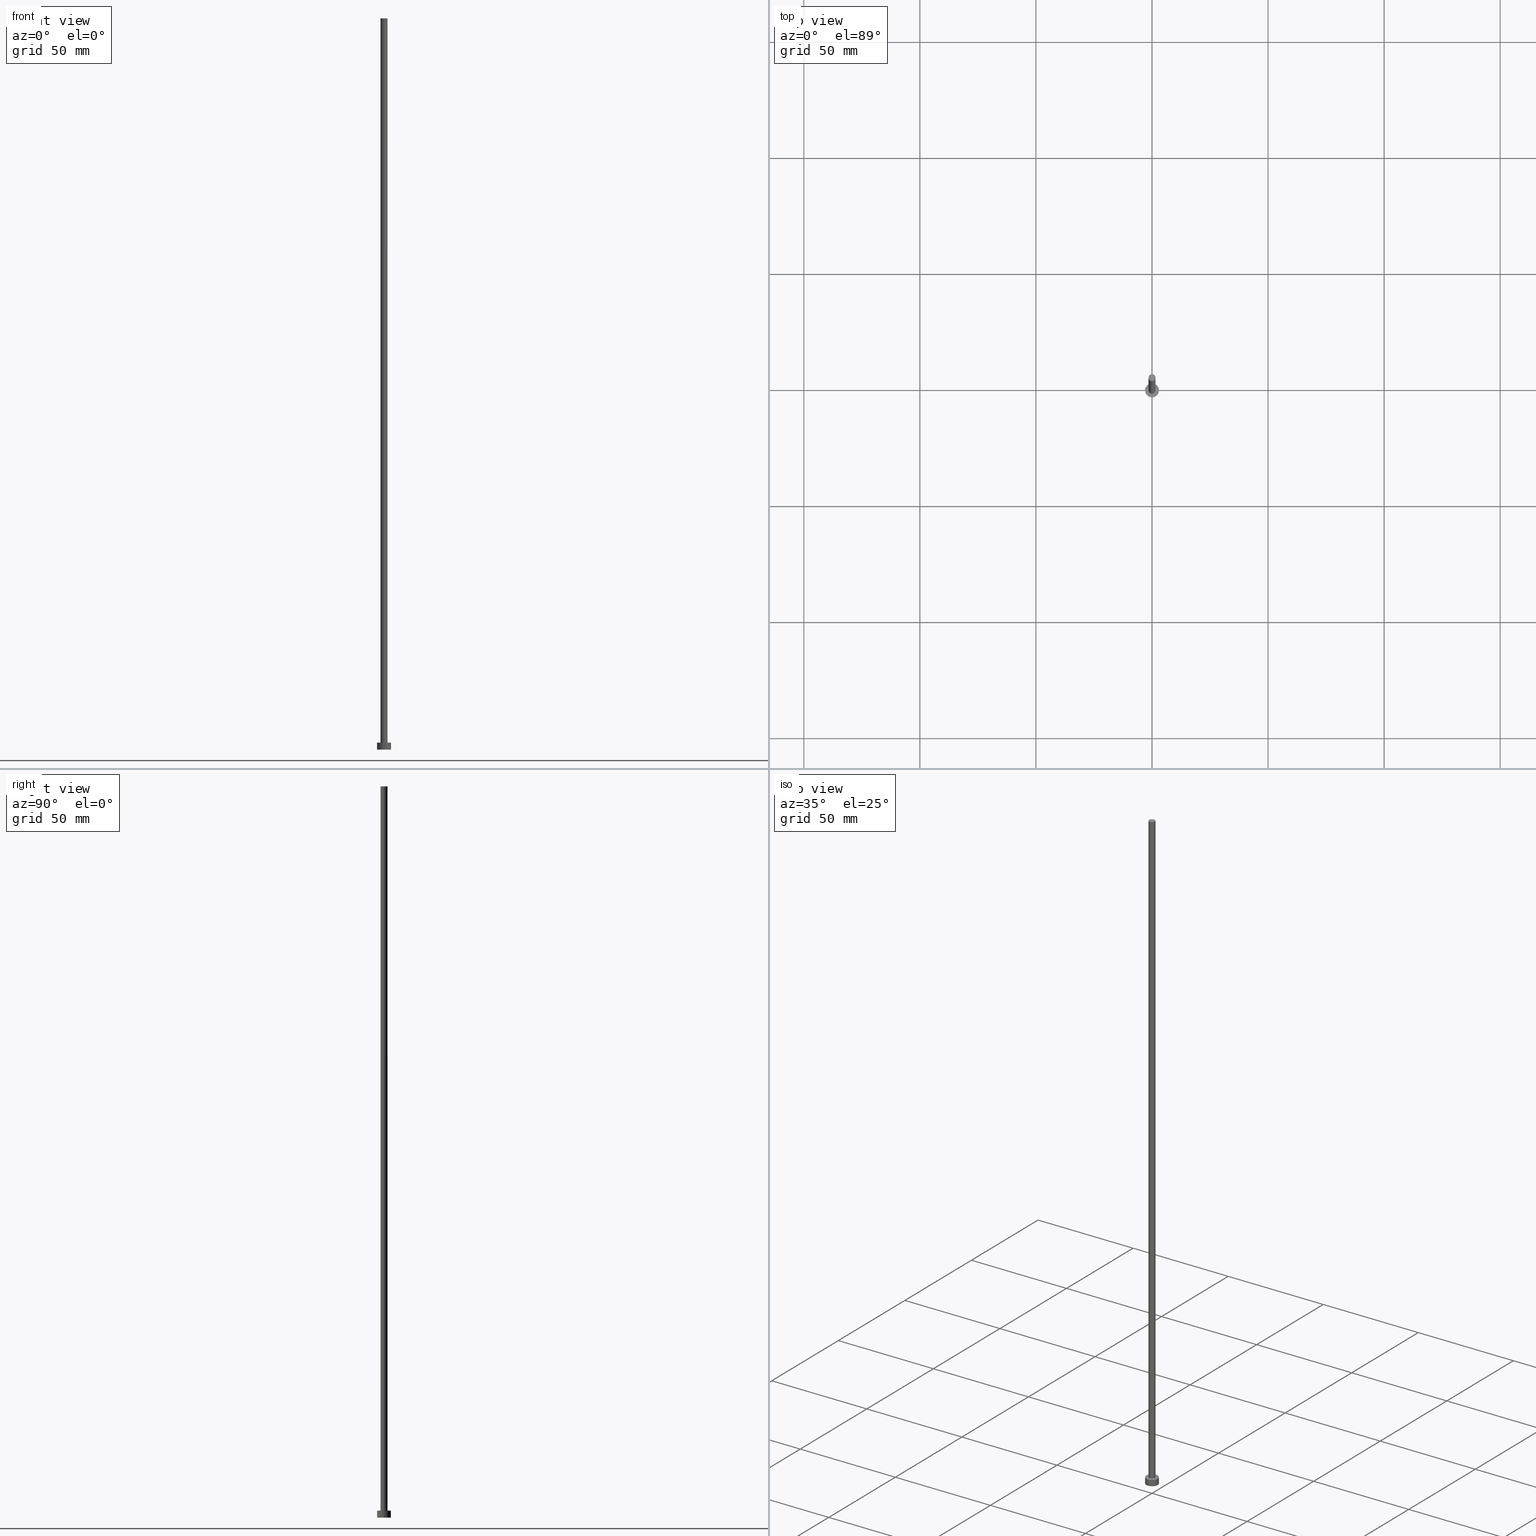
[diagram: canonical four-view strip — front | top / right | iso, engineering-drawing reading convention]
A machine part, canonical four-view strip (front | top / right | iso — engineering-drawing reading convention). The complete STEP part file that produces these views, byte-faithful:
ISO-10303-21;
HEADER;
FILE_DESCRIPTION (( 'STEP AP203' ),
    '1' );
FILE_NAME ('45d9.STEP',
    '2023-02-13T16:54:37',
    ( '' ),
    ( '' ),
    'SwSTEP 2.0',
    'SolidWorks 2019',
    '' );
FILE_SCHEMA (( 'CONFIG_CONTROL_DESIGN' ));
ENDSEC;

DATA;
#1 = PERSON_AND_ORGANIZATION ( #113, #80 ) ;
#2 = COORDINATED_UNIVERSAL_TIME_OFFSET ( 1, 0, .AHEAD. ) ;
#3 = DIRECTION ( 'NONE',  ( 1.000000000000000000, 0.000000000000000000, 0.000000000000000000 ) ) ;
#4 = ORIENTED_EDGE ( 'NONE', *, *, #111, .T. ) ;
#5 = APPROVAL ( #23, 'NEUR�EN�' ) ;
#6 = LOCAL_TIME ( 17, 54, 37.00000000000000000, #156 ) ;
#7 = AXIS2_PLACEMENT_3D ( 'NONE', #161, #183, #185 ) ;
#8 = ORIENTED_EDGE ( 'NONE', *, *, #43, .F. ) ;
#9 = PERSON_AND_ORGANIZATION ( #113, #80 ) ;
#10 = CARTESIAN_POINT ( 'NONE',  ( 1.500000000000000222, 1.836970198721030181E-16, 315.0000000000000000 ) ) ;
#11 =( NAMED_UNIT ( * ) PLANE_ANGLE_UNIT ( ) SI_UNIT ( $, .RADIAN. ) );
#12 = CYLINDRICAL_SURFACE ( 'NONE', #70, 3.000000000000000444 ) ;
#13 = VECTOR ( 'NONE', #93, 1000.000000000000000 ) ;
#14 = DIRECTION ( 'NONE',  ( -0.000000000000000000, -0.000000000000000000, -1.000000000000000000 ) ) ;
#15 = CARTESIAN_POINT ( 'NONE',  ( 3.000000000000000444, 3.673940397442060361E-16, 0.000000000000000000 ) ) ;
#16 = DIRECTION ( 'NONE',  ( 0.000000000000000000, 0.000000000000000000, 1.000000000000000000 ) ) ;
#17 = CARTESIAN_POINT ( 'NONE',  ( 0.000000000000000000, 0.000000000000000000, 0.000000000000000000 ) ) ;
#18 = DIRECTION ( 'NONE',  ( -1.000000000000000000, 0.000000000000000000, 0.000000000000000000 ) ) ;
#19 = CARTESIAN_POINT ( 'NONE',  ( 0.000000000000000000, 0.000000000000000000, 0.000000000000000000 ) ) ;
#20 = EDGE_CURVE ( 'NONE', #65, #136, #162, .T. ) ;
#21 = FACE_OUTER_BOUND ( 'NONE', #220, .T. ) ;
#22 = PERSON_AND_ORGANIZATION ( #113, #80 ) ;
#23 = APPROVAL_STATUS ( 'not_yet_approved' ) ;
#24 = ORIENTED_EDGE ( 'NONE', *, *, #173, .F. ) ;
#25 = APPROVAL_ROLE ( '' ) ;
#26 = APPROVAL_ROLE ( '' ) ;
#27 = SHAPE_DEFINITION_REPRESENTATION ( #100, #170 ) ;
#28 = ADVANCED_FACE ( 'NONE', ( #229 ), #230, .T. ) ;
#29 = CIRCLE ( 'NONE', #167, 1.500000000000000222 ) ;
#30 = DIRECTION ( 'NONE',  ( 0.000000000000000000, 0.000000000000000000, 1.000000000000000000 ) ) ;
#31 = EDGE_LOOP ( 'NONE', ( #117, #137, #160, #74 ) ) ;
#32 = FACE_OUTER_BOUND ( 'NONE', #175, .T. ) ;
#33 = EDGE_CURVE ( 'NONE', #136, #157, #89, .T. ) ;
#34 = AXIS2_PLACEMENT_3D ( 'NONE', #19, #174, #254 ) ;
#35 = DIRECTION ( 'NONE',  ( -0.000000000000000000, -0.000000000000000000, -1.000000000000000000 ) ) ;
#36 = APPLICATION_PROTOCOL_DEFINITION ( 'international standard', 'config_control_design', 1994, #154 ) ;
#37 = DIRECTION ( 'NONE',  ( -0.000000000000000000, -0.000000000000000000, -1.000000000000000000 ) ) ;
#38 = EDGE_CURVE ( 'NONE', #224, #135, #190, .T. ) ;
#39 = CARTESIAN_POINT ( 'NONE',  ( -1.500000000000000222, 0.000000000000000000, 315.0000000000000000 ) ) ;
#40 = DATE_TIME_ROLE ( 'creation_date' ) ;
#41 = PRODUCT_DEFINITION_FORMATION_WITH_SPECIFIED_SOURCE ( 'LIBOVOLN�', '', #101, .NOT_KNOWN. ) ;
#42 = DESIGN_CONTEXT ( 'detailed design', #195, 'design' ) ;
#43 = EDGE_CURVE ( 'NONE', #136, #65, #206, .T. ) ;
#44 = DATE_TIME_ROLE ( 'classification_date' ) ;
#45 = CALENDAR_DATE ( 2023, 13, 2 ) ;
#46 = CC_DESIGN_APPROVAL ( #5, ( #69 ) ) ;
#47 = DATE_AND_TIME ( #99, #251 ) ;
#48 = EDGE_CURVE ( 'NONE', #215, #178, #120, .T. ) ;
#49 = MECHANICAL_CONTEXT ( 'NONE', #154, 'mechanical' ) ;
#50 = CARTESIAN_POINT ( 'NONE',  ( -3.000000000000000444, 0.000000000000000000, 3.000000000000000000 ) ) ;
#51 = EDGE_LOOP ( 'NONE', ( #138, #158 ) ) ;
#52 = ORIENTED_EDGE ( 'NONE', *, *, #38, .F. ) ;
#53 = CC_DESIGN_PERSON_AND_ORGANIZATION_ASSIGNMENT ( #9, #87, ( #69 ) ) ;
#54 = DIRECTION ( 'NONE',  ( 1.000000000000000000, 0.000000000000000000, 0.000000000000000000 ) ) ;
#55 = DIRECTION ( 'NONE',  ( 1.000000000000000000, 0.000000000000000000, -0.000000000000000000 ) ) ;
#56 = AXIS2_PLACEMENT_3D ( 'NONE', #203, #30, #159 ) ;
#57 = EDGE_CURVE ( 'NONE', #178, #224, #76, .T. ) ;
#58 = DIRECTION ( 'NONE',  ( -1.000000000000000000, 0.000000000000000000, 0.000000000000000000 ) ) ;
#59 = EDGE_LOOP ( 'NONE', ( #68, #240 ) ) ;
#60 = EDGE_CURVE ( 'NONE', #215, #135, #140, .T. ) ;
#61 = CARTESIAN_POINT ( 'NONE',  ( 0.000000000000000000, 0.000000000000000000, 3.000000000000000000 ) ) ;
#62 = PERSON_AND_ORGANIZATION_ROLE ( 'creator' ) ;
#63 = PERSON_AND_ORGANIZATION ( #113, #80 ) ;
#64 = APPLICATION_PROTOCOL_DEFINITION ( 'international standard', 'config_control_design', 1994, #195 ) ;
#65 = VERTEX_POINT ( 'NONE', #71 ) ;
#66 = ADVANCED_FACE ( 'NONE', ( #227 ), #225, .T. ) ;
#67 = ORIENTED_EDGE ( 'NONE', *, *, #96, .F. ) ;
#68 = ORIENTED_EDGE ( 'NONE', *, *, #43, .T. ) ;
#69 = PRODUCT_DEFINITION ( 'NEZN�M�', '', #41, #42 ) ;
#70 = AXIS2_PLACEMENT_3D ( 'NONE', #243, #91, #207 ) ;
#71 = CARTESIAN_POINT ( 'NONE',  ( 3.000000000000000444, 3.673940397442060361E-16, 3.000000000000000000 ) ) ;
#72 = FACE_BOUND ( 'NONE', #86, .T. ) ;
#73 = CARTESIAN_POINT ( 'NONE',  ( -3.000000000000000444, 0.000000000000000000, 3.000000000000000000 ) ) ;
#74 = ORIENTED_EDGE ( 'NONE', *, *, #60, .F. ) ;
#75 = APPROVAL_PERSON_ORGANIZATION ( #63, #255, #25 ) ;
#76 = LINE ( 'NONE', #126, #114 ) ;
#77 = AXIS2_PLACEMENT_3D ( 'NONE', #247, #232, #95 ) ;
#78 = CALENDAR_DATE ( 2023, 13, 2 ) ;
#79 = AXIS2_PLACEMENT_3D ( 'NONE', #146, #186, #54 ) ;
#80 = ORGANIZATION ( 'NEUR�EN�', 'NEUR�EN�', '' ) ;
#81 = CARTESIAN_POINT ( 'NONE',  ( 0.000000000000000000, 0.000000000000000000, 3.000000000000000000 ) ) ;
#82 = EDGE_CURVE ( 'NONE', #178, #215, #29, .T. ) ;
#83 = APPROVAL_DATE_TIME ( #179, #5 ) ;
#84 = ORIENTED_EDGE ( 'NONE', *, *, #57, .F. ) ;
#85 = DIRECTION ( 'NONE',  ( 1.000000000000000000, 0.000000000000000000, 0.000000000000000000 ) ) ;
#86 = EDGE_LOOP ( 'NONE', ( #67, #52 ) ) ;
#87 = PERSON_AND_ORGANIZATION_ROLE ( 'creator' ) ;
#88 = APPROVAL_PERSON_ORGANIZATION ( #199, #5, #103 ) ;
#89 = LINE ( 'NONE', #73, #13 ) ;
#90 = CARTESIAN_POINT ( 'NONE',  ( 0.000000000000000000, 0.000000000000000000, 3.000000000000000000 ) ) ;
#91 = DIRECTION ( 'NONE',  ( -0.000000000000000000, -0.000000000000000000, -1.000000000000000000 ) ) ;
#92 =( NAMED_UNIT ( * ) SI_UNIT ( $, .STERADIAN. ) SOLID_ANGLE_UNIT ( ) );
#93 = DIRECTION ( 'NONE',  ( -0.000000000000000000, -0.000000000000000000, -1.000000000000000000 ) ) ;
#94 = AXIS2_PLACEMENT_3D ( 'NONE', #17, #246, #85 ) ;
#95 = DIRECTION ( 'NONE',  ( -1.000000000000000000, 0.000000000000000000, 0.000000000000000000 ) ) ;
#96 = EDGE_CURVE ( 'NONE', #135, #224, #235, .T. ) ;
#97 =( GEOMETRIC_REPRESENTATION_CONTEXT ( 3 ) GLOBAL_UNCERTAINTY_ASSIGNED_CONTEXT ( ( #214 ) ) GLOBAL_UNIT_ASSIGNED_CONTEXT ( ( #149, #11, #92 ) ) REPRESENTATION_CONTEXT ( 'NONE', 'WORKASPACE' ) );
#98 = ADVANCED_FACE ( 'NONE', ( #32 ), #12, .T. ) ;
#99 = CALENDAR_DATE ( 2023, 13, 2 ) ;
#100 = PRODUCT_DEFINITION_SHAPE ( 'NONE', 'NONE',  #69 ) ;
#101 = PRODUCT ( '45d9', '45d9', '', ( #49 ) ) ;
#102 = CC_DESIGN_PERSON_AND_ORGANIZATION_ASSIGNMENT ( #213, #216, ( #223 ) ) ;
#103 = APPROVAL_ROLE ( '' ) ;
#104 = ORIENTED_EDGE ( 'NONE', *, *, #33, .T. ) ;
#105 = CALENDAR_DATE ( 2023, 13, 2 ) ;
#106 = DIRECTION ( 'NONE',  ( 0.000000000000000000, 0.000000000000000000, 1.000000000000000000 ) ) ;
#107 = AXIS2_PLACEMENT_3D ( 'NONE', #90, #123, #108 ) ;
#108 = DIRECTION ( 'NONE',  ( 1.000000000000000000, 0.000000000000000000, 0.000000000000000000 ) ) ;
#109 = LINE ( 'NONE', #166, #144 ) ;
#110 = DIRECTION ( 'NONE',  ( 1.000000000000000000, 0.000000000000000000, 0.000000000000000000 ) ) ;
#111 = EDGE_CURVE ( 'NONE', #65, #122, #109, .T. ) ;
#112 = DIRECTION ( 'NONE',  ( 1.000000000000000000, 0.000000000000000000, 0.000000000000000000 ) ) ;
#113 = PERSON ( 'NEUR�EN�', 'NEUR�EN�', 'NEUR�EN�', ('NEUR�EN�'), ('NEUR�EN�'), ('NEUR�EN�') ) ;
#114 = VECTOR ( 'NONE', #242, 1000.000000000000000 ) ;
#115 = FACE_OUTER_BOUND ( 'NONE', #119, .T. ) ;
#116 = PERSON_AND_ORGANIZATION ( #113, #80 ) ;
#117 = ORIENTED_EDGE ( 'NONE', *, *, #82, .F. ) ;
#118 = ORIENTED_EDGE ( 'NONE', *, *, #173, .T. ) ;
#119 = EDGE_LOOP ( 'NONE', ( #155, #8, #104, #202 ) ) ;
#120 = CIRCLE ( 'NONE', #7, 1.500000000000000222 ) ;
#121 = ORIENTED_EDGE ( 'NONE', *, *, #48, .F. ) ;
#122 = VERTEX_POINT ( 'NONE', #15 ) ;
#123 = DIRECTION ( 'NONE',  ( 0.000000000000000000, 0.000000000000000000, 1.000000000000000000 ) ) ;
#124 = CARTESIAN_POINT ( 'NONE',  ( 0.000000000000000000, 0.000000000000000000, 3.000000000000000000 ) ) ;
#125 = ADVANCED_FACE ( 'NONE', ( #163 ), #148, .T. ) ;
#126 = CARTESIAN_POINT ( 'NONE',  ( 1.500000000000000222, 1.836970198721030181E-16, 315.0000000000000000 ) ) ;
#127 = LOCAL_TIME ( 17, 54, 37.00000000000000000, #237 ) ;
#128 = CYLINDRICAL_SURFACE ( 'NONE', #253, 3.000000000000000444 ) ;
#129 = APPROVAL_PERSON_ORGANIZATION ( #1, #182, #26 ) ;
#130 = DIRECTION ( 'NONE',  ( 0.000000000000000000, 0.000000000000000000, 1.000000000000000000 ) ) ;
#131 = SECURITY_CLASSIFICATION_LEVEL ( 'unclassified' ) ;
#132 = PRODUCT_RELATED_PRODUCT_CATEGORY ( 'detail', '', ( #101 ) ) ;
#133 = PERSON_AND_ORGANIZATION_ROLE ( 'design_supplier' ) ;
#134 = CC_DESIGN_APPROVAL ( #182, ( #223 ) ) ;
#135 = VERTEX_POINT ( 'NONE', #219 ) ;
#136 = VERTEX_POINT ( 'NONE', #50 ) ;
#137 = ORIENTED_EDGE ( 'NONE', *, *, #57, .T. ) ;
#138 = ORIENTED_EDGE ( 'NONE', *, *, #48, .T. ) ;
#139 = CC_DESIGN_APPROVAL ( #255, ( #41 ) ) ;
#140 = LINE ( 'NONE', #142, #143 ) ;
#141 = CC_DESIGN_PERSON_AND_ORGANIZATION_ASSIGNMENT ( #252, #133, ( #41 ) ) ;
#142 = CARTESIAN_POINT ( 'NONE',  ( -1.500000000000000222, 0.000000000000000000, 315.0000000000000000 ) ) ;
#143 = VECTOR ( 'NONE', #37, 1000.000000000000000 ) ;
#144 = VECTOR ( 'NONE', #35, 1000.000000000000000 ) ;
#145 = EDGE_CURVE ( 'NONE', #157, #122, #196, .T. ) ;
#146 = CARTESIAN_POINT ( 'NONE',  ( 0.000000000000000000, 0.000000000000000000, 3.000000000000000000 ) ) ;
#147 = FACE_OUTER_BOUND ( 'NONE', #59, .T. ) ;
#148 = CYLINDRICAL_SURFACE ( 'NONE', #77, 1.500000000000000222 ) ;
#149 =( LENGTH_UNIT ( ) NAMED_UNIT ( * ) SI_UNIT ( .MILLI., .METRE. ) );
#150 = APPROVAL_STATUS ( 'not_yet_approved' ) ;
#151 = CARTESIAN_POINT ( 'NONE',  ( 1.500000000000000222, 1.836970198721030181E-16, 3.000000000000000000 ) ) ;
#152 = PERSON_AND_ORGANIZATION_ROLE ( 'design_owner' ) ;
#153 = CARTESIAN_POINT ( 'NONE',  ( -3.000000000000000444, 0.000000000000000000, 0.000000000000000000 ) ) ;
#154 = APPLICATION_CONTEXT ( 'configuration controlled 3d designs of mechanical parts and assemblies' ) ;
#155 = ORIENTED_EDGE ( 'NONE', *, *, #111, .F. ) ;
#156 = COORDINATED_UNIVERSAL_TIME_OFFSET ( 1, 0, .AHEAD. ) ;
#157 = VERTEX_POINT ( 'NONE', #153 ) ;
#158 = ORIENTED_EDGE ( 'NONE', *, *, #82, .T. ) ;
#159 = DIRECTION ( 'NONE',  ( 1.000000000000000000, 0.000000000000000000, 0.000000000000000000 ) ) ;
#160 = ORIENTED_EDGE ( 'NONE', *, *, #38, .T. ) ;
#161 = CARTESIAN_POINT ( 'NONE',  ( 0.000000000000000000, 0.000000000000000000, 315.0000000000000000 ) ) ;
#162 = CIRCLE ( 'NONE', #107, 3.000000000000000444 ) ;
#163 = FACE_OUTER_BOUND ( 'NONE', #241, .T. ) ;
#164 = MANIFOLD_SOLID_BREP ( 'P�idat vysunut�m3', #217 ) ;
#165 = DIRECTION ( 'NONE',  ( 1.000000000000000000, 0.000000000000000000, 0.000000000000000000 ) ) ;
#166 = CARTESIAN_POINT ( 'NONE',  ( 3.000000000000000444, 3.673940397442060361E-16, 3.000000000000000000 ) ) ;
#167 = AXIS2_PLACEMENT_3D ( 'NONE', #209, #16, #112 ) ;
#168 = CC_DESIGN_SECURITY_CLASSIFICATION ( #223, ( #41 ) ) ;
#169 = CARTESIAN_POINT ( 'NONE',  ( 0.000000000000000000, 0.000000000000000000, 3.000000000000000000 ) ) ;
#170 = ADVANCED_BREP_SHAPE_REPRESENTATION ( '45d9', ( #164, #94 ), #97 ) ;
#171 = CC_DESIGN_DATE_AND_TIME_ASSIGNMENT ( #47, #40, ( #69 ) ) ;
#172 = PLANE ( 'NONE',  #188 ) ;
#173 = EDGE_CURVE ( 'NONE', #122, #157, #218, .T. ) ;
#174 = DIRECTION ( 'NONE',  ( 0.000000000000000000, 0.000000000000000000, 1.000000000000000000 ) ) ;
#175 = EDGE_LOOP ( 'NONE', ( #239, #4, #118, #200 ) ) ;
#176 = COORDINATED_UNIVERSAL_TIME_OFFSET ( 1, 0, .AHEAD. ) ;
#177 = DATE_AND_TIME ( #45, #127 ) ;
#178 = VERTEX_POINT ( 'NONE', #10 ) ;
#179 = DATE_AND_TIME ( #105, #6 ) ;
#180 = AXIS2_PLACEMENT_3D ( 'NONE', #204, #226, #55 ) ;
#181 = ORIENTED_EDGE ( 'NONE', *, *, #96, .T. ) ;
#182 = APPROVAL ( #238, 'NEUR�EN�' ) ;
#183 = DIRECTION ( 'NONE',  ( 0.000000000000000000, 0.000000000000000000, 1.000000000000000000 ) ) ;
#184 = CARTESIAN_POINT ( 'NONE',  ( 0.000000000000000000, 0.000000000000000000, 315.0000000000000000 ) ) ;
#185 = DIRECTION ( 'NONE',  ( 1.000000000000000000, 0.000000000000000000, 0.000000000000000000 ) ) ;
#186 = DIRECTION ( 'NONE',  ( 0.000000000000000000, 0.000000000000000000, 1.000000000000000000 ) ) ;
#187 = AXIS2_PLACEMENT_3D ( 'NONE', #184, #14, #58 ) ;
#188 = AXIS2_PLACEMENT_3D ( 'NONE', #61, #130, #191 ) ;
#189 = ADVANCED_FACE ( 'NONE', ( #72, #147 ), #172, .T. ) ;
#190 = CIRCLE ( 'NONE', #250, 1.500000000000000222 ) ;
#191 = DIRECTION ( 'NONE',  ( 1.000000000000000000, 0.000000000000000000, -0.000000000000000000 ) ) ;
#192 = COORDINATED_UNIVERSAL_TIME_OFFSET ( 1, 0, .AHEAD. ) ;
#193 = DIRECTION ( 'NONE',  ( -0.000000000000000000, -0.000000000000000000, -1.000000000000000000 ) ) ;
#194 = DATE_AND_TIME ( #197, #244 ) ;
#195 = APPLICATION_CONTEXT ( 'configuration controlled 3d designs of mechanical parts and assemblies' ) ;
#196 = CIRCLE ( 'NONE', #56, 3.000000000000000444 ) ;
#197 = CALENDAR_DATE ( 2023, 13, 2 ) ;
#198 = APPROVAL_DATE_TIME ( #177, #182 ) ;
#199 = PERSON_AND_ORGANIZATION ( #113, #80 ) ;
#200 = ORIENTED_EDGE ( 'NONE', *, *, #33, .F. ) ;
#201 = ORIENTED_EDGE ( 'NONE', *, *, #60, .T. ) ;
#202 = ORIENTED_EDGE ( 'NONE', *, *, #145, .T. ) ;
#203 = CARTESIAN_POINT ( 'NONE',  ( 0.000000000000000000, 0.000000000000000000, 0.000000000000000000 ) ) ;
#204 = CARTESIAN_POINT ( 'NONE',  ( 0.000000000000000000, 0.000000000000000000, 315.0000000000000000 ) ) ;
#205 = LOCAL_TIME ( 17, 54, 37.00000000000000000, #192 ) ;
#206 = CIRCLE ( 'NONE', #228, 3.000000000000000444 ) ;
#207 = DIRECTION ( 'NONE',  ( -1.000000000000000000, 0.000000000000000000, 0.000000000000000000 ) ) ;
#208 = CC_DESIGN_PERSON_AND_ORGANIZATION_ASSIGNMENT ( #116, #62, ( #41 ) ) ;
#209 = CARTESIAN_POINT ( 'NONE',  ( 0.000000000000000000, 0.000000000000000000, 315.0000000000000000 ) ) ;
#210 = DIRECTION ( 'NONE',  ( 0.000000000000000000, 0.000000000000000000, 1.000000000000000000 ) ) ;
#211 = CC_DESIGN_PERSON_AND_ORGANIZATION_ASSIGNMENT ( #22, #152, ( #101 ) ) ;
#212 = ADVANCED_FACE ( 'NONE', ( #115 ), #128, .T. ) ;
#213 = PERSON_AND_ORGANIZATION ( #113, #80 ) ;
#214 = UNCERTAINTY_MEASURE_WITH_UNIT (LENGTH_MEASURE( 1.000000000000000082E-05 ), #149, 'distance_accuracy_value', 'NONE');
#215 = VERTEX_POINT ( 'NONE', #39 ) ;
#216 = PERSON_AND_ORGANIZATION_ROLE ( 'classification_officer' ) ;
#217 = CLOSED_SHELL ( 'NONE', ( #28, #98, #212, #189, #222, #125, #66 ) ) ;
#218 = CIRCLE ( 'NONE', #249, 3.000000000000000444 ) ;
#219 = CARTESIAN_POINT ( 'NONE',  ( -1.500000000000000222, 0.000000000000000000, 3.000000000000000000 ) ) ;
#220 = EDGE_LOOP ( 'NONE', ( #236, #24 ) ) ;
#221 = CARTESIAN_POINT ( 'NONE',  ( 0.000000000000000000, 0.000000000000000000, 0.000000000000000000 ) ) ;
#222 = ADVANCED_FACE ( 'NONE', ( #21 ), #248, .F. ) ;
#223 = SECURITY_CLASSIFICATION ( '', '', #131 ) ;
#224 = VERTEX_POINT ( 'NONE', #151 ) ;
#225 = PLANE ( 'NONE',  #180 ) ;
#226 = DIRECTION ( 'NONE',  ( 0.000000000000000000, 0.000000000000000000, 1.000000000000000000 ) ) ;
#227 = FACE_OUTER_BOUND ( 'NONE', #51, .T. ) ;
#228 = AXIS2_PLACEMENT_3D ( 'NONE', #169, #245, #165 ) ;
#229 = FACE_OUTER_BOUND ( 'NONE', #31, .T. ) ;
#230 = CYLINDRICAL_SURFACE ( 'NONE', #187, 1.500000000000000222 ) ;
#231 = CC_DESIGN_DATE_AND_TIME_ASSIGNMENT ( #194, #44, ( #223 ) ) ;
#232 = DIRECTION ( 'NONE',  ( -0.000000000000000000, -0.000000000000000000, -1.000000000000000000 ) ) ;
#233 = APPROVAL_DATE_TIME ( #234, #255 ) ;
#234 = DATE_AND_TIME ( #78, #205 ) ;
#235 = CIRCLE ( 'NONE', #79, 1.500000000000000222 ) ;
#236 = ORIENTED_EDGE ( 'NONE', *, *, #145, .F. ) ;
#237 = COORDINATED_UNIVERSAL_TIME_OFFSET ( 1, 0, .AHEAD. ) ;
#238 = APPROVAL_STATUS ( 'not_yet_approved' ) ;
#239 = ORIENTED_EDGE ( 'NONE', *, *, #20, .F. ) ;
#240 = ORIENTED_EDGE ( 'NONE', *, *, #20, .T. ) ;
#241 = EDGE_LOOP ( 'NONE', ( #84, #121, #201, #181 ) ) ;
#242 = DIRECTION ( 'NONE',  ( -0.000000000000000000, -0.000000000000000000, -1.000000000000000000 ) ) ;
#243 = CARTESIAN_POINT ( 'NONE',  ( 0.000000000000000000, 0.000000000000000000, 3.000000000000000000 ) ) ;
#244 = LOCAL_TIME ( 17, 54, 37.00000000000000000, #176 ) ;
#245 = DIRECTION ( 'NONE',  ( 0.000000000000000000, 0.000000000000000000, 1.000000000000000000 ) ) ;
#246 = DIRECTION ( 'NONE',  ( 0.000000000000000000, 0.000000000000000000, 1.000000000000000000 ) ) ;
#247 = CARTESIAN_POINT ( 'NONE',  ( 0.000000000000000000, 0.000000000000000000, 315.0000000000000000 ) ) ;
#248 = PLANE ( 'NONE',  #34 ) ;
#249 = AXIS2_PLACEMENT_3D ( 'NONE', #221, #106, #3 ) ;
#250 = AXIS2_PLACEMENT_3D ( 'NONE', #124, #210, #110 ) ;
#251 = LOCAL_TIME ( 17, 54, 37.00000000000000000, #2 ) ;
#252 = PERSON_AND_ORGANIZATION ( #113, #80 ) ;
#253 = AXIS2_PLACEMENT_3D ( 'NONE', #81, #193, #18 ) ;
#254 = DIRECTION ( 'NONE',  ( 1.000000000000000000, 0.000000000000000000, -0.000000000000000000 ) ) ;
#255 = APPROVAL ( #150, 'NEUR�EN�' ) ;
ENDSEC;
END-ISO-10303-21;
